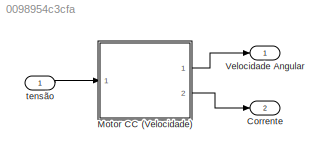
MODEL slx_0098954c3cfa
KIND model
CONFIG AbsTol = auto
CONFIG EnableMultiTasking = off
CONFIG FixedStep = auto
CONFIG MaxStep = auto
CONFIG MinStep = auto
CONFIG RelTol = 1e-3
CONFIG SampleTimeConstraint = Unconstrained
CONFIG Solver = VariableStepAuto
CONFIG SolverName = VariableStepAuto
CONFIG StartTime = 0.0
CONFIG StopTime = 10.0
BLOCK [Outport] Corrente
  IconDisplay = Port number
  Port = 2
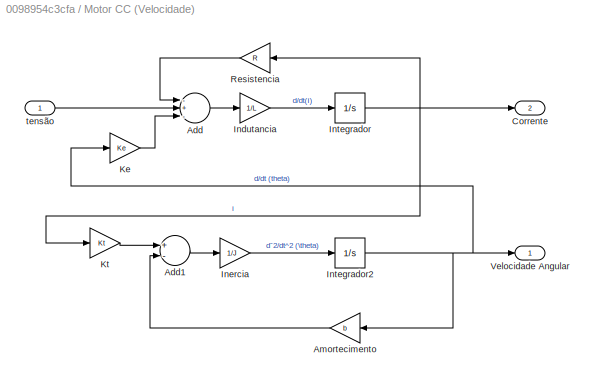
BLOCK [SubSystem] Motor CC (Velocidade)
  Ports = [1, 2]
  RequestExecContextInheritance = off
  Variant = off
BLOCK [Sum] Motor CC (Velocidade)/Add
  InputSameDT = off
  Inputs = -+-
  OutDataTypeStr = Inherit: Inherit via internal rule
  Ports = [3, 1]
  SaturateOnIntegerOverflow = off
BLOCK [Sum] Motor CC (Velocidade)/Add1
  InputSameDT = off
  Inputs = +-
  OutDataTypeStr = Inherit: Inherit via internal rule
  Ports = [2, 1]
  SaturateOnIntegerOverflow = off
BLOCK [Gain] Motor CC (Velocidade)/Amortecimento
  Gain = b
  OutDataTypeStr = Inherit: Inherit via internal rule
  ParamDataTypeStr = Inherit: Inherit via internal rule
  SaturateOnIntegerOverflow = off
BLOCK [Outport] Motor CC (Velocidade)/Corrente
  IconDisplay = Port number
  Port = 2
BLOCK [Gain] Motor CC (Velocidade)/Indutancia
  Gain = 1/L
  OutDataTypeStr = Inherit: Inherit via internal rule
  ParamDataTypeStr = Inherit: Inherit via internal rule
  SaturateOnIntegerOverflow = off
BLOCK [Gain] Motor CC (Velocidade)/Inercia
  Gain = 1/J
  OutDataTypeStr = Inherit: Inherit via internal rule
  ParamDataTypeStr = Inherit: Inherit via internal rule
  SaturateOnIntegerOverflow = off
BLOCK [Integrator] Motor CC (Velocidade)/Integrador
  Ports = [1, 1]
BLOCK [Integrator] Motor CC (Velocidade)/Integrador2
  Ports = [1, 1]
BLOCK [Gain] Motor CC (Velocidade)/Ke
  Gain = Ke
  OutDataTypeStr = Inherit: Inherit via internal rule
  ParamDataTypeStr = Inherit: Inherit via internal rule
  SaturateOnIntegerOverflow = off
BLOCK [Gain] Motor CC (Velocidade)/Kt
  Gain = Kt
  OutDataTypeStr = Inherit: Inherit via internal rule
  ParamDataTypeStr = Inherit: Inherit via internal rule
  SaturateOnIntegerOverflow = off
BLOCK [Gain] Motor CC (Velocidade)/Resistencia
  Gain = R
  OutDataTypeStr = Inherit: Inherit via internal rule
  ParamDataTypeStr = Inherit: Inherit via internal rule
  SaturateOnIntegerOverflow = off
BLOCK [Outport] Motor CC (Velocidade)/Velocidade Angular
  IconDisplay = Port number
BLOCK [Inport] Motor CC (Velocidade)/tensão
  IconDisplay = Port number
BLOCK [Outport] Velocidade Angular
  IconDisplay = Port number
BLOCK [Inport] tensão
  IconDisplay = Port number
LINE Motor CC (Velocidade)/Add1:1 -> Motor CC (Velocidade)/Inercia:1
LINE Motor CC (Velocidade)/Add:1 -> Motor CC (Velocidade)/Indutancia:1
LINE Motor CC (Velocidade)/Amortecimento:1 -> Motor CC (Velocidade)/Add1:2
LINE Motor CC (Velocidade)/Indutancia:1 -> Motor CC (Velocidade)/Integrador:1
LINE Motor CC (Velocidade)/Inercia:1 -> Motor CC (Velocidade)/Integrador2:1
NET Motor CC (Velocidade)/Integrador2:1 -> Motor CC (Velocidade)/Amortecimento:1, Motor CC (Velocidade)/Ke:1, Motor CC (Velocidade)/Velocidade Angular:1
NET Motor CC (Velocidade)/Integrador:1 -> Motor CC (Velocidade)/Corrente:1, Motor CC (Velocidade)/Kt:1, Motor CC (Velocidade)/Resistencia:1
LINE Motor CC (Velocidade)/Ke:1 -> Motor CC (Velocidade)/Add:3
LINE Motor CC (Velocidade)/Kt:1 -> Motor CC (Velocidade)/Add1:1
LINE Motor CC (Velocidade)/Resistencia:1 -> Motor CC (Velocidade)/Add:1
LINE Motor CC (Velocidade)/tensão:1 -> Motor CC (Velocidade)/Add:2
LINE Motor CC (Velocidade):1 -> Velocidade Angular:1
LINE Motor CC (Velocidade):2 -> Corrente:1
LINE tensão:1 -> Motor CC (Velocidade):1
note: NET lines group one-source signal fan-out (src -> all destinations, sorted); 1:1 wires keep LINE
